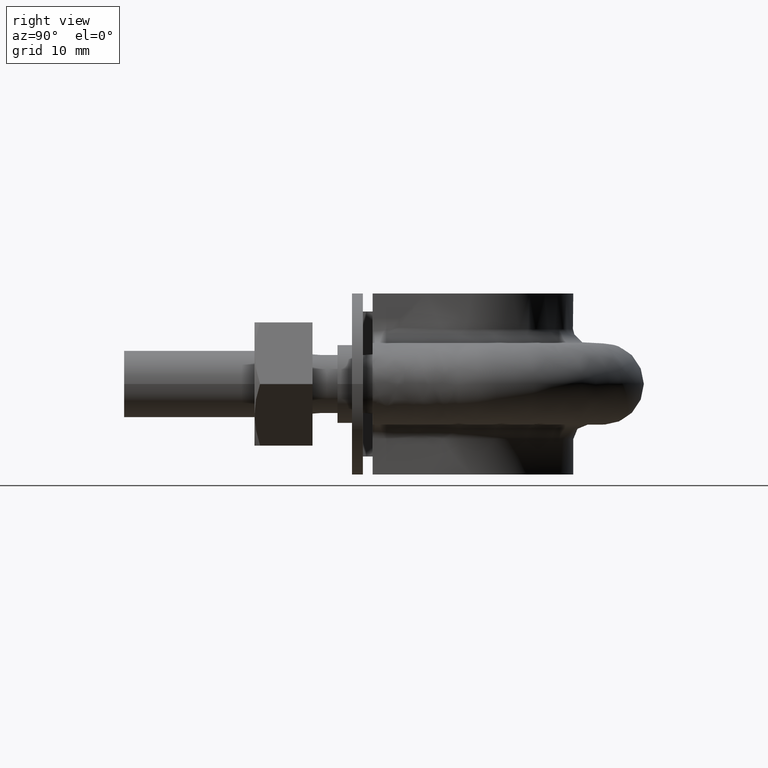
[diagram: clean part render]
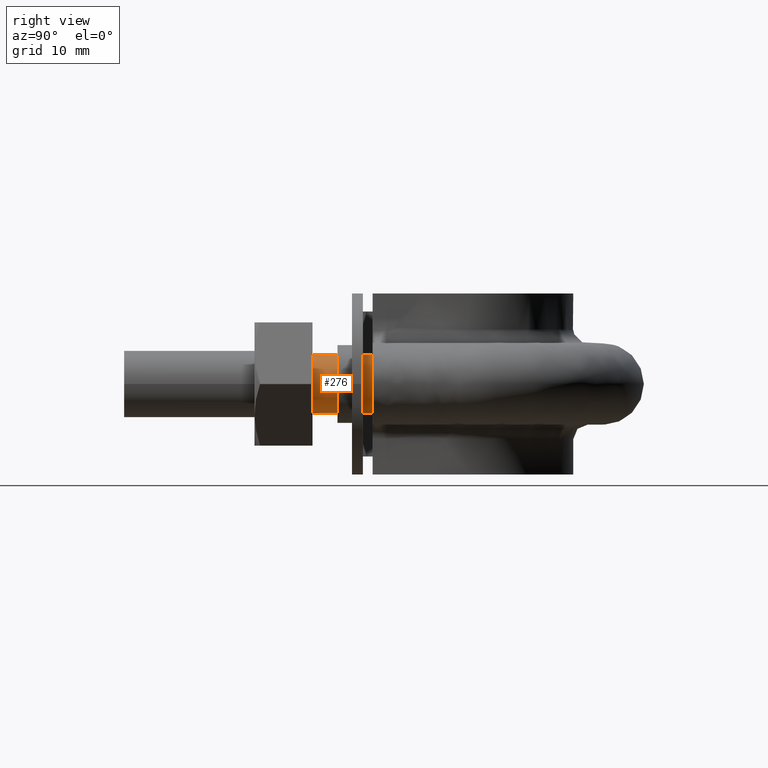
[diagram: same view with one face highlighted and labeled with its STEP entity id]
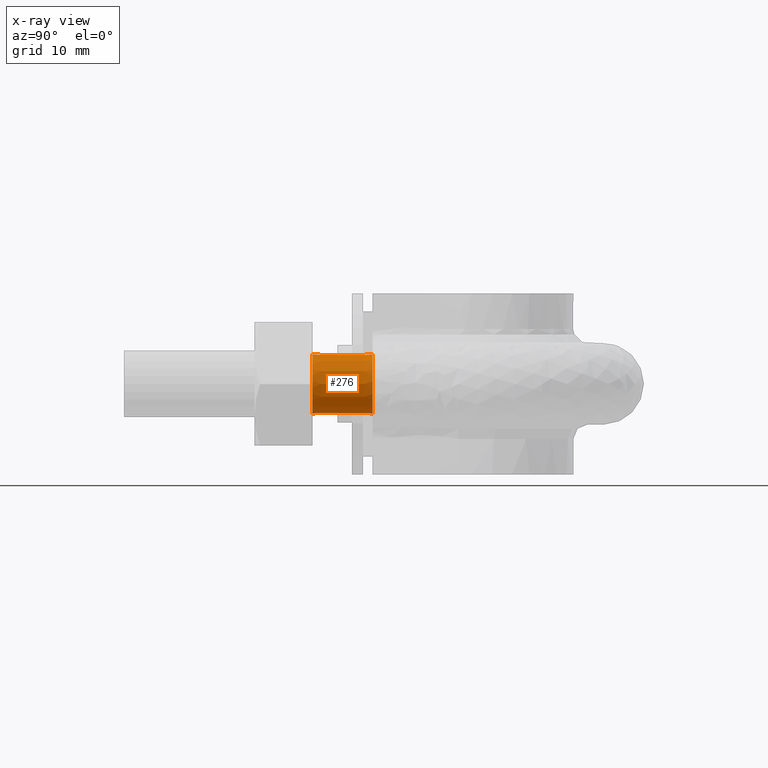
[diagram: x-ray of the same camera — body ghosted, the highlighted face saturated]
A machine part, right view. The second image highlights one B-rep face of the part: STEP entity #276.
The next image is the same camera in x-ray: the body ghosted, the highlighted face saturated — about 0% of this face is hidden behind the body in this view.
In plain terms, the highlighted face is a SurfaceOfExtrusion surface.
Its self-contained STEP definition (entity closure, byte-faithful):
#276 = ADVANCED_FACE( '', ( #390, #391 ), #392, .F. );
#390 = FACE_OUTER_BOUND( '', #1496, .T. );
#391 = FACE_OUTER_BOUND( '', #1497, .T. );
#392 = SURFACE_OF_LINEAR_EXTRUSION( '', #1498, #1499 );
#1496 = EDGE_LOOP( '', ( #1777 ) );
#1497 = EDGE_LOOP( '', ( #1778 ) );
#1498 = B_SPLINE_CURVE_WITH_KNOTS( '', 3, ( #1779, #1780, #1781, #1782, #1783, #1784, #1785, #1786, #1787, #1788 ), .UNSPECIFIED., .T., .F., ( 4, 1, 1, 1, 1, 1, 1, 4 ), ( -1.00000000000000, -0.857142857142857, -0.714285714285714, -0.571428571428571, -0.428571428571429, -0.285714285714286, -0.142857142857143, 0.000000000000000 ), .UNSPECIFIED. );
#1499 = VECTOR( '', #1789, 1000.00000000000 );
#1777 = ORIENTED_EDGE( '', *, *, #2467, .T. );
#1778 = ORIENTED_EDGE( '', *, *, #2468, .F. );
#1779 = CARTESIAN_POINT( '', ( 15.9000000000000, -1.94712410257758E-015, 3.03134155736329E-014 ) );
#1780 = CARTESIAN_POINT( '', ( 15.9000000000000, 4.99176980132965E-015, -1.22184926194405 ) );
#1781 = CARTESIAN_POINT( '', ( 17.0768231851220, 4.84765528634706E-015, -3.66554778583222 ) );
#1782 = CARTESIAN_POINT( '', ( 21.0432697263483, 4.36192172269881E-015, -4.57086332538451 ) );
#1783 = CARTESIAN_POINT( '', ( 24.2241128848103, 3.97239364846231E-015, -2.03422555230243 ) );
#1784 = CARTESIAN_POINT( '', ( 24.2241128848103, 3.97239364846231E-015, 2.03422555230249 ) );
#1785 = CARTESIAN_POINT( '', ( 21.0432697263483, -2.57697218120842E-015, 4.57086332538457 ) );
#1786 = CARTESIAN_POINT( '', ( 17.0768231851220, 4.84765528634706E-015, 3.66554778583228 ) );
#1787 = CARTESIAN_POINT( '', ( 15.9000000000000, -1.94712410257758E-015, 1.22184926194411 ) );
#1788 = CARTESIAN_POINT( '', ( 15.9000000000000, -1.94712410257758E-015, 3.03134155736329E-014 ) );
#1789 = DIRECTION( '', ( 1.22460635382237E-016, 1.00000000000000, -8.67968352402046E-016 ) );
#2467 = EDGE_CURVE( '', #2693, #2693, #2694, .T. );
#2468 = EDGE_CURVE( '', #2695, #2695, #2696, .T. );
#2693 = VERTEX_POINT( '', #3223 );
#2694 = B_SPLINE_CURVE_WITH_KNOTS( '', 3, ( #3224, #3225, #3226, #3227, #3228, #3229, #3230, #3231, #3232, #3233 ), .UNSPECIFIED., .T., .F., ( 4, 1, 1, 1, 1, 1, 1, 4 ), ( -1.00000000000000, -0.857142857142857, -0.714285714285714, -0.571428571428571, -0.428571428571429, -0.285714285714286, -0.142857142857143, 0.000000000000000 ), .UNSPECIFIED. );
#2695 = VERTEX_POINT( '', #3234 );
#2696 = B_SPLINE_CURVE_WITH_KNOTS( '', 3, ( #3235, #3236, #3237, #3238, #3239, #3240, #3241, #3242, #3243, #3244 ), .UNSPECIFIED., .T., .F., ( 4, 1, 1, 1, 1, 1, 1, 4 ), ( -1.00000000000000, -0.857142857142857, -0.714285714285714, -0.571428571428571, -0.428571428571429, -0.285714285714286, -0.142857142857143, 0.000000000000000 ), .UNSPECIFIED. );
#3223 = CARTESIAN_POINT( '', ( 15.9000000000000, 34.3000000000000, 5.42101086242752E-016 ) );
#3224 = CARTESIAN_POINT( '', ( 15.9000000000000, 34.3000000000000, 5.42101086242752E-016 ) );
#3225 = CARTESIAN_POINT( '', ( 15.9000000000000, 34.3000000000000, -1.22184926194408 ) );
#3226 = CARTESIAN_POINT( '', ( 17.0768231851220, 34.3000000000000, -3.66554778583225 ) );
#3227 = CARTESIAN_POINT( '', ( 21.0432697263483, 34.3000000000000, -4.57086332538454 ) );
#3228 = CARTESIAN_POINT( '', ( 24.2241128848103, 34.3000000000000, -2.03422555230246 ) );
#3229 = CARTESIAN_POINT( '', ( 24.2241128848103, 34.3000000000000, 2.03422555230246 ) );
#3230 = CARTESIAN_POINT( '', ( 21.0432697263483, 34.3000000000000, 4.57086332538454 ) );
#3231 = CARTESIAN_POINT( '', ( 17.0768231851220, 34.3000000000000, 3.66554778583225 ) );
#3232 = CARTESIAN_POINT( '', ( 15.9000000000000, 34.3000000000000, 1.22184926194408 ) );
#3233 = CARTESIAN_POINT( '', ( 15.9000000000000, 34.3000000000000, 5.42101086242752E-016 ) );
#3234 = CARTESIAN_POINT( '', ( 15.9000000000000, 26.0000000000000, 7.74623841117974E-015 ) );
#3235 = CARTESIAN_POINT( '', ( 15.9000000000000, 26.0000000000000, 7.74623841117974E-015 ) );
#3236 = CARTESIAN_POINT( '', ( 15.9000000000000, 26.0000000000000, -1.22184926194408 ) );
#3237 = CARTESIAN_POINT( '', ( 17.0768231851220, 26.0000000000000, -3.66554778583224 ) );
#3238 = CARTESIAN_POINT( '', ( 21.0432697263483, 26.0000000000000, -4.57086332538453 ) );
#3239 = CARTESIAN_POINT( '', ( 24.2241128848103, 26.0000000000000, -2.03422555230246 ) );
#3240 = CARTESIAN_POINT( '', ( 24.2241128848103, 26.0000000000000, 2.03422555230247 ) );
#3241 = CARTESIAN_POINT( '', ( 21.0432697263483, 26.0000000000000, 4.57086332538454 ) );
#3242 = CARTESIAN_POINT( '', ( 17.0768231851220, 26.0000000000000, 3.66554778583226 ) );
#3243 = CARTESIAN_POINT( '', ( 15.9000000000000, 26.0000000000000, 1.22184926194409 ) );
#3244 = CARTESIAN_POINT( '', ( 15.9000000000000, 26.0000000000000, 7.74623841117974E-015 ) );